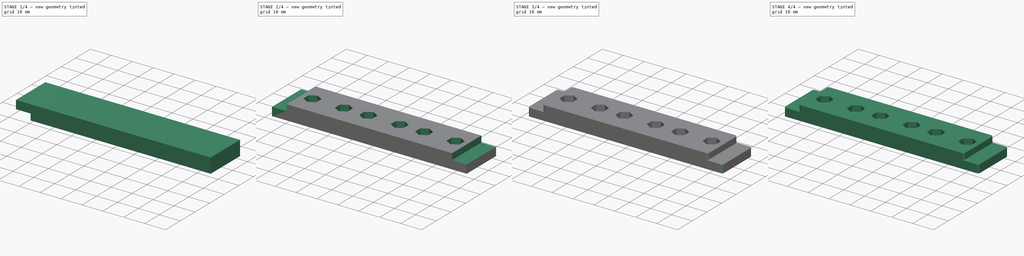
[diagram: build sequence overview — one tinted view per stage of 4, left to right]
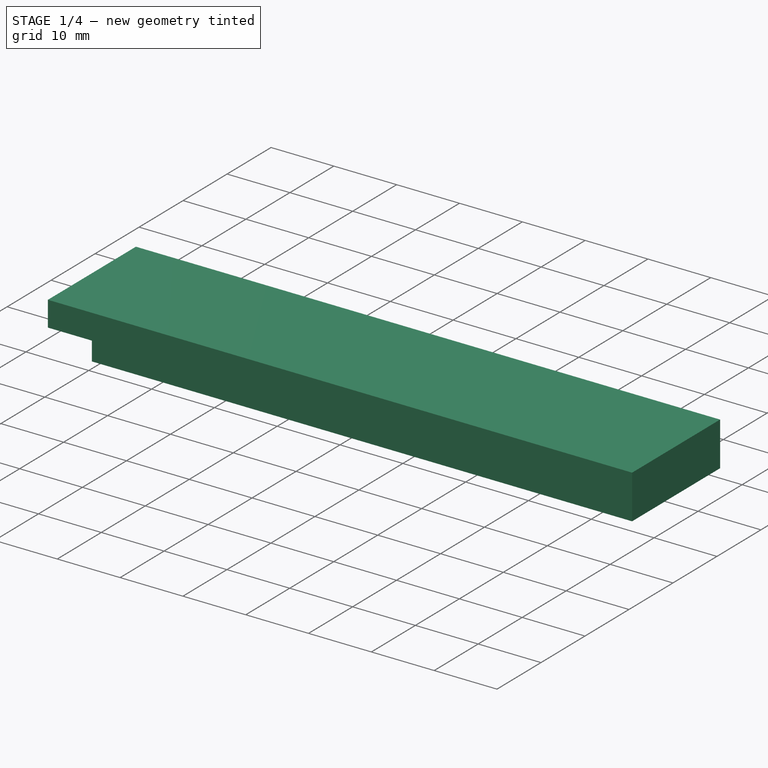
[diagram: stage 1 of 4 — iso view after this stage's code; geometry added in this stage tinted green]
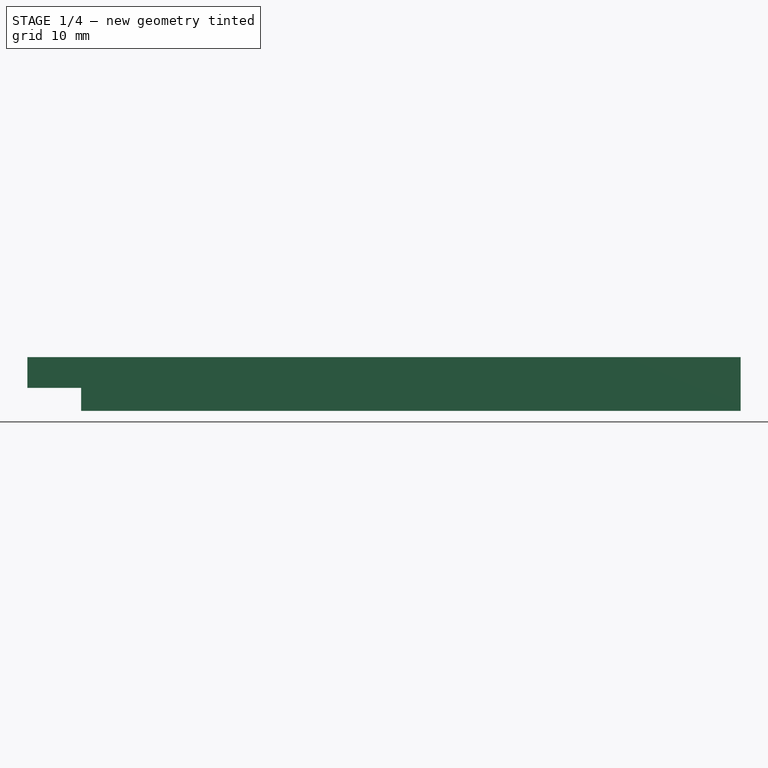
[diagram: stage 1 of 4 — front view after this stage's code; geometry added in this stage tinted green]
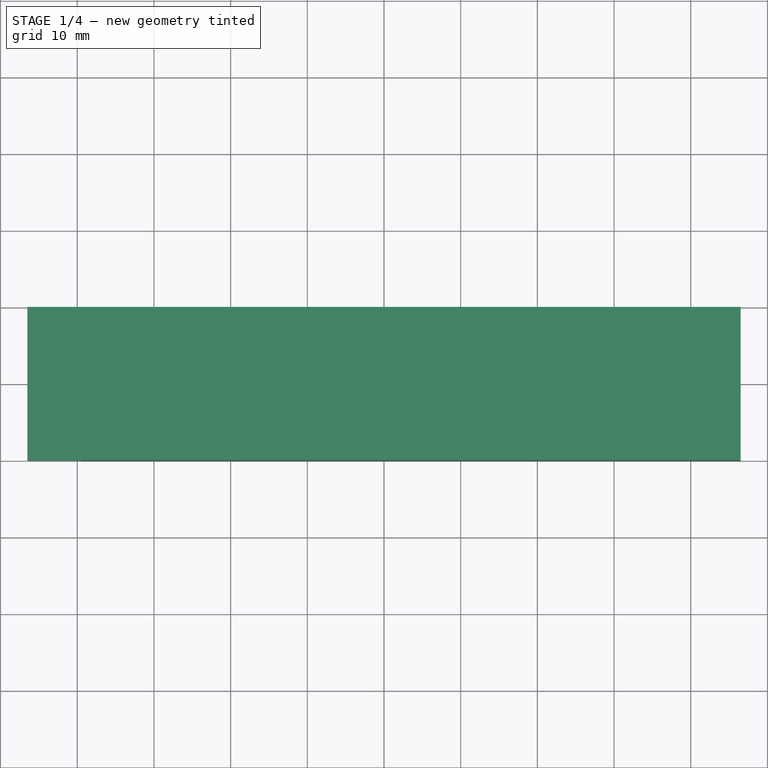
[diagram: stage 1 of 4 — top view after this stage's code; geometry added in this stage tinted green]
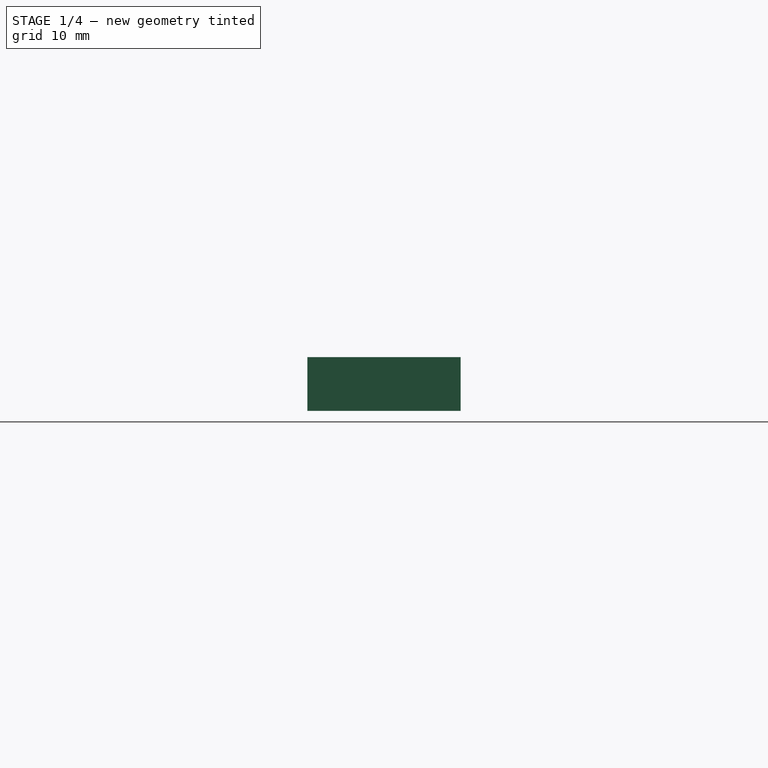
[diagram: stage 1 of 4 — right view after this stage's code; geometry added in this stage tinted green]
FCSTD DOCUMENT  (FreeCAD 0.15R4671 (Git))
Label: strain-relief-bottom
License: All rights reserved
LicenseURL: http://en.wikipedia.org/wiki/All_rights_reserved
objects: Part::Box×3, PartDesign::Chamfer×3, Part::Cut×2, Sketcher::SketchObject×2, PartDesign::Pocket×2, PartDesign::Fillet×2, Part::Chamfer×1
note: 17 computed .brp shape members not serialized (recipe doc carries the construction recipe); baked Part::Feature solids carry a one-line shape summary decoded from their .brp

FEATURE [Part::Box] Box  label="Würfel"
  Height = 7
  Length = 93
  Placement = pos=(-46.5,-10,0) rot=(0,0,1;0rad)
  Width = 20
FEATURE [Part::Box] Box001  label="Würfel001"
  Height = 10
  Length = 10
  Placement = pos=(-49.5,-15,-7) rot=(0,0,1;0rad)
  Width = 30
FEATURE [Part::Cut] Cut
  Base = -> Box
  Tool = -> Box001
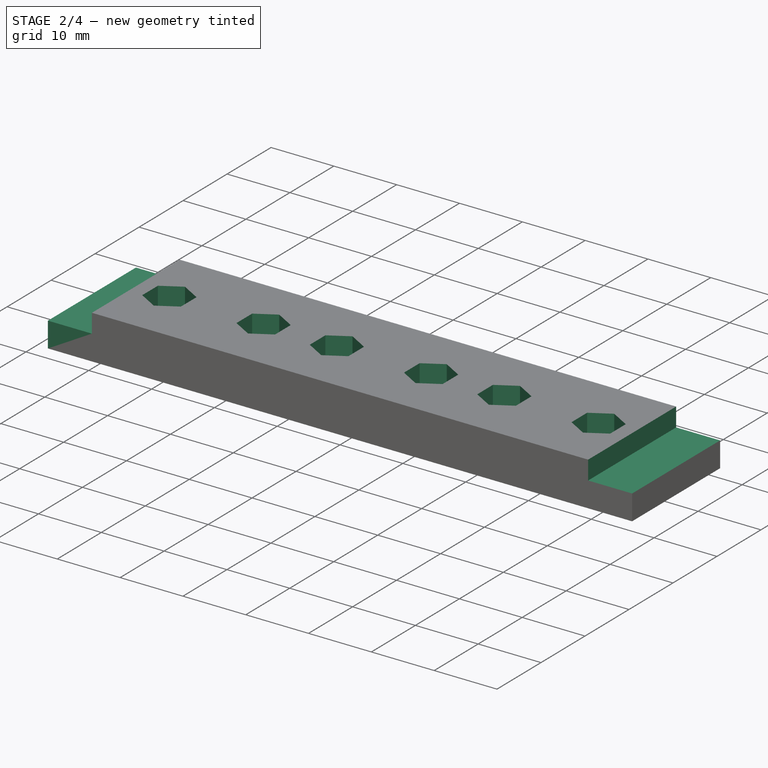
[diagram: stage 2 of 4 — iso view after this stage's code; geometry added in this stage tinted green]
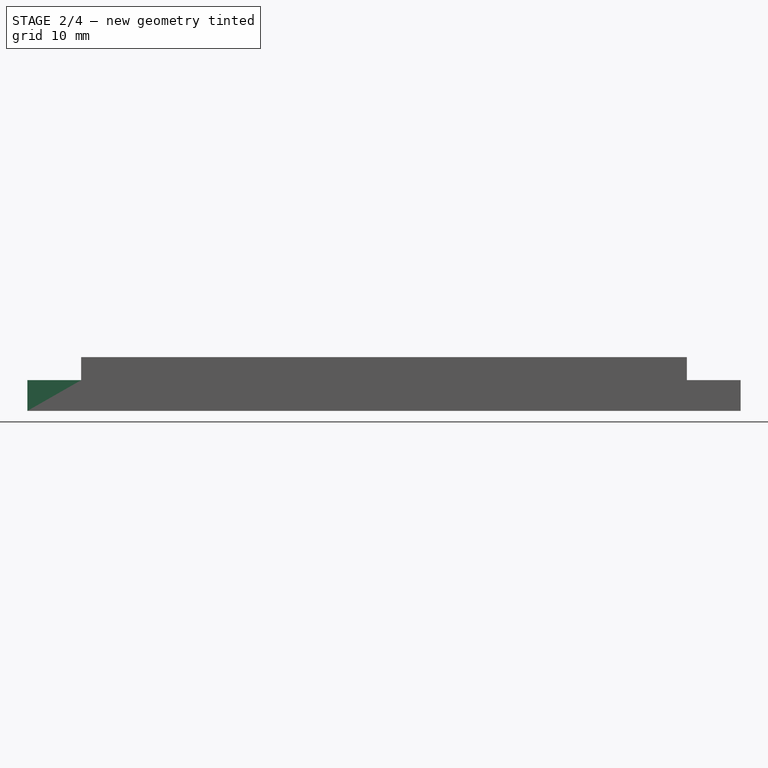
[diagram: stage 2 of 4 — front view after this stage's code; geometry added in this stage tinted green]
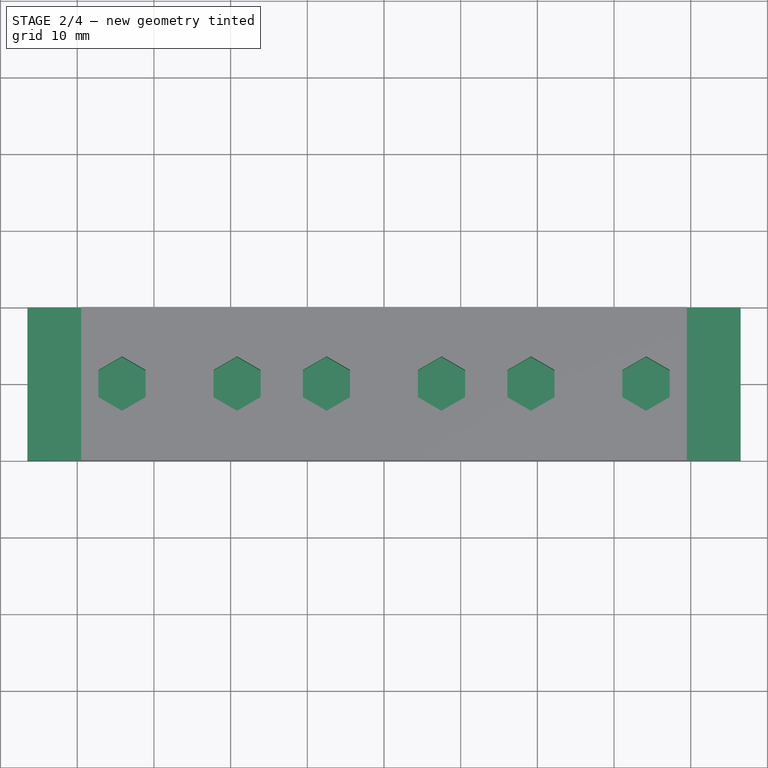
[diagram: stage 2 of 4 — top view after this stage's code; geometry added in this stage tinted green]
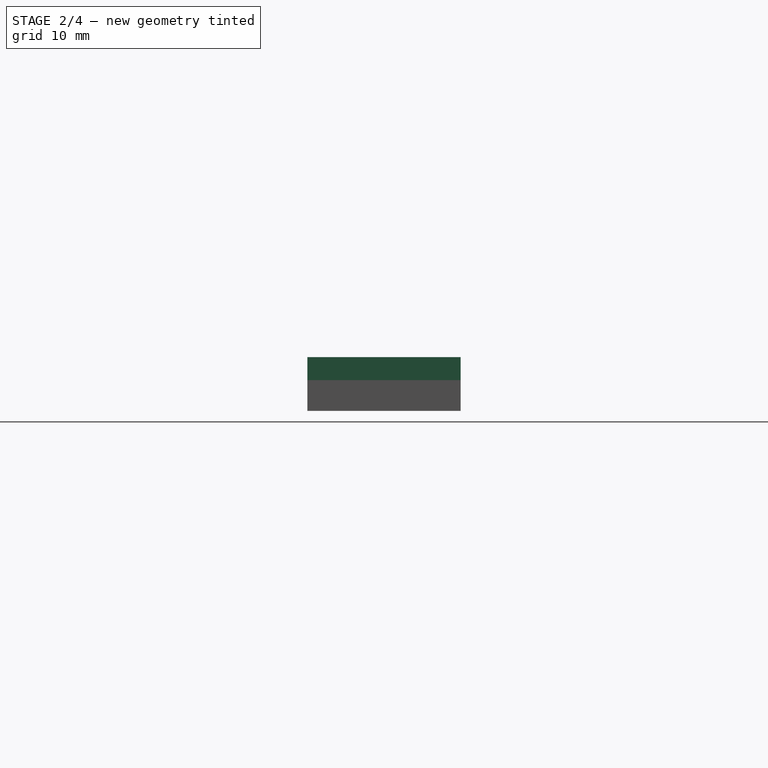
[diagram: stage 2 of 4 — right view after this stage's code; geometry added in this stage tinted green]
FEATURE [Part::Box] Box002  label="Würfel002"
  Height = 10
  Length = 10
  Placement = pos=(39.5,-15,-7) rot=(0,0,1;0rad)
  Width = 30
FEATURE [Part::Cut] Cut001
  Base = -> Cut
  Placement = pos=(0,0,7) rot=(1,0,0;3.14159rad)
  Tool = -> Box002
FEATURE [Sketcher::SketchObject] Sketch
  Placement = pos=(0,0,7) rot=(0,0,1;0rad)
  Support = -> Cut001 [Face6]
  sketch-geometry (47):
    g0: LineSegment StartX=10.5744 StartY=1.775 StartZ=0 EndX=7.5 EndY=3.55 EndZ=0
    g1: LineSegment StartX=7.5 StartY=3.55 StartZ=0 EndX=4.42561 EndY=1.775 EndZ=0
    g2: LineSegment StartX=4.42561 StartY=1.775 StartZ=0 EndX=4.42561 EndY=-1.775 EndZ=0
    g3: LineSegment StartX=4.42561 StartY=-1.775 StartZ=0 EndX=7.5 EndY=-3.55 EndZ=0
    g4: LineSegment StartX=7.5 StartY=-3.55 StartZ=0 EndX=10.5744 EndY=-1.775 EndZ=0
    g5: LineSegment StartX=10.5744 StartY=-1.775 StartZ=0 EndX=10.5744 EndY=1.775 EndZ=0
    g6: Circle [constr] CenterX=7.5 CenterY=0 CenterZ=0 NormalX=0 NormalY=0 NormalZ=1 Radius=3.55
    g7: LineSegment StartX=-4.42561 StartY=1.775 StartZ=0 EndX=-7.5 EndY=3.55 EndZ=0
    g8: LineSegment StartX=-7.5 StartY=3.55 StartZ=0 EndX=-10.5744 EndY=1.775 EndZ=0
    g9: LineSegment StartX=-10.5744 StartY=1.775 StartZ=0 EndX=-10.5744 EndY=-1.775 EndZ=0
    g10: LineSegment StartX=-10.5744 StartY=-1.775 StartZ=0 EndX=-7.5 EndY=-3.55 EndZ=0
    g11: LineSegment StartX=-7.5 StartY=-3.55 StartZ=0 EndX=-4.42561 EndY=-1.775 EndZ=0
    g12: LineSegment StartX=-4.42561 StartY=-1.775 StartZ=0 EndX=-4.42561 EndY=1.775 EndZ=0
    g13: Circle [constr] CenterX=-7.5 CenterY=0 CenterZ=0 NormalX=0 NormalY=0 NormalZ=1 Radius=3.55
    g14: LineSegment StartX=-16.0923 StartY=1.775 StartZ=0 EndX=-19.1667 EndY=3.55 EndZ=0
    g15: LineSegment StartX=-19.1667 StartY=3.55 StartZ=0 EndX=-22.2411 EndY=1.775 EndZ=0
    g16: LineSegment StartX=-22.2411 StartY=1.775 StartZ=0 EndX=-22.2411 EndY=-1.775 EndZ=0
    g17: LineSegment StartX=-22.2411 StartY=-1.775 StartZ=0 EndX=-19.1667 EndY=-3.55 EndZ=0
    g18: LineSegment StartX=-19.1667 StartY=-3.55 StartZ=0 EndX=-16.0923 EndY=-1.775 EndZ=0
    g19: LineSegment StartX=-16.0923 StartY=-1.775 StartZ=0 EndX=-16.0923 EndY=1.775 EndZ=0
    g20: Circle [constr] CenterX=-19.1667 CenterY=0 CenterZ=0 NormalX=0 NormalY=0 NormalZ=1 Radius=3.55
    g21: LineSegment StartX=-31.0923 StartY=1.775 StartZ=0 EndX=-34.1667 EndY=3.55 EndZ=0
    g22: LineSegment StartX=-34.1667 StartY=3.55 StartZ=0 EndX=-37.2411 EndY=1.775 EndZ=0
    g23: LineSegment StartX=-37.2411 StartY=1.775 StartZ=0 EndX=-37.2411 EndY=-1.775 EndZ=0
    g24: LineSegment StartX=-37.2411 StartY=-1.775 StartZ=0 EndX=-34.1667 EndY=-3.55 EndZ=0
    g25: LineSegment StartX=-34.1667 StartY=-3.55 StartZ=0 EndX=-31.0923 EndY=-1.775 EndZ=0
    g26: LineSegment StartX=-31.0923 StartY=-1.775 StartZ=0 EndX=-31.0923 EndY=1.775 EndZ=0
    g27: Circle [constr] CenterX=-34.1667 CenterY=0 CenterZ=0 NormalX=0 NormalY=0 NormalZ=1 Radius=3.55
    g28: LineSegment StartX=22.2411 StartY=-1.775 StartZ=0 EndX=22.2411 EndY=1.775 EndZ=0
    g29: LineSegment StartX=22.2411 StartY=1.775 StartZ=0 EndX=19.1667 EndY=3.55 EndZ=0
    g30: LineSegment StartX=19.1667 StartY=3.55 StartZ=0 EndX=16.0923 EndY=1.775 EndZ=0
    g31: LineSegment StartX=16.0923 StartY=1.775 StartZ=0 EndX=16.0923 EndY=-1.775 EndZ=0
    g32: LineSegment StartX=16.0923 StartY=-1.775 StartZ=0 EndX=19.1667 EndY=-3.55 EndZ=0
    g33: LineSegment StartX=19.1667 StartY=-3.55 StartZ=0 EndX=22.2411 EndY=-1.775 EndZ=0
    g34: Circle [constr] CenterX=19.1667 CenterY=0 CenterZ=0 NormalX=0 NormalY=0 NormalZ=1 Radius=3.55
    g35: LineSegment StartX=37.2411 StartY=-1.775 StartZ=0 EndX=37.2411 EndY=1.775 EndZ=0
    g36: LineSegment StartX=37.2411 StartY=1.775 StartZ=0 EndX=34.1667 EndY=3.55 EndZ=0
    g37: LineSegment StartX=34.1667 StartY=3.55 StartZ=0 EndX=31.0923 EndY=1.775 EndZ=0
    g38: LineSegment StartX=31.0923 StartY=1.775 StartZ=0 EndX=31.0923 EndY=-1.775 EndZ=0
    g39: LineSegment StartX=31.0923 StartY=-1.775 StartZ=0 EndX=34.1667 EndY=-3.55 EndZ=0
    g40: LineSegment StartX=34.1667 StartY=-3.55 StartZ=0 EndX=37.2411 EndY=-1.775 EndZ=0
    g41: Circle [constr] CenterX=34.1667 CenterY=0 CenterZ=0 NormalX=0 NormalY=0 NormalZ=1 Radius=3.55
    g42: LineSegment [constr] StartX=-26.6667 StartY=10 StartZ=0 EndX=-26.6667 EndY=-10 EndZ=0
    g43: LineSegment [constr] StartX=26.6667 StartY=-10 StartZ=0 EndX=26.6667 EndY=10 EndZ=0
    g44: LineSegment [constr] StartX=19.1667 StartY=0 StartZ=0 EndX=34.1667 EndY=0 EndZ=0
    g45: LineSegment [constr] StartX=7.5 StartY=0 StartZ=0 EndX=-7.5 EndY=0 EndZ=0
    g46: LineSegment [constr] StartX=-19.1667 StartY=0 StartZ=0 EndX=-34.1667 EndY=0 EndZ=0
  constraints (113):
    c: Coincident(g0,g1)
    c: Coincident(g1,g2)
    c: Coincident(g2,g3)
    c: Coincident(g3,g4)
    c: Coincident(g4,g5)
    c: Coincident(g5,g0)
    c: Equal(g0, g1-g5) x5
    c: PointOnObject(g0,g6)
    c: PointOnObject(g1,g6)
    c: PointOnObject(g2,g6)
    c: PointOnObject(g3,g6)
    c: PointOnObject(g4,g6)
    c: Coincident(g7,g8)
    c: Coincident(g8,g9)
    c: Coincident(g9,g10)
    c: Coincident(g10,g11)
    c: Coincident(g11,g12)
    c: Coincident(g12,g7)
    c: Equal(g7, g8-g12) x5
    c: PointOnObject(g7,g13)
    c: PointOnObject(g8,g13)
    c: PointOnObject(g9,g13)
    c: PointOnObject(g10,g13)
    c: PointOnObject(g11,g13)
    c: Radius(g13) = 3.55
    c: Coincident(g14,g15)
    c: Coincident(g15,g16)
    c: Coincident(g16,g17)
    c: Coincident(g17,g18)
    c: Coincident(g18,g19)
    c: Coincident(g19,g14)
    c: Equal(g14, g15-g19) x5
    c: PointOnObject(g14,g20)
    c: PointOnObject(g15,g20)
    c: PointOnObject(g16,g20)
    c: PointOnObject(g17,g20)
    c: PointOnObject(g18,g20)
    c: Coincident(g21,g22)
    c: Coincident(g22,g23)
    c: Coincident(g23,g24)
    c: Coincident(g24,g25)
    c: Coincident(g25,g26)
    c: Coincident(g26,g21)
    c: Equal(g21, g22-g26) x5
    c: PointOnObject(g21,g27)
    c: PointOnObject(g22,g27)
    c: PointOnObject(g23,g27)
    c: PointOnObject(g24,g27)
    c: PointOnObject(g25,g27)
    c: Coincident(g28,g29)
    c: Coincident(g29,g30)
    c: Coincident(g30,g31)
    c: Coincident(g31,g32)
    c: Coincident(g32,g33)
    c: Coincident(g33,g28)
    c: Equal(g28, g29-g33) x5
    c: PointOnObject(g28,g34)
    c: PointOnObject(g29,g34)
    c: PointOnObject(g30,g34)
    c: PointOnObject(g31,g34)
    c: PointOnObject(g32,g34)
    c: Coincident(g35,g36)
    c: Coincident(g36,g37)
    c: Coincident(g37,g38)
    c: Coincident(g38,g39)
    c: Coincident(g39,g40)
    c: Coincident(g40,g35)
    c: Equal(g35, g36-g40) x5
    c: PointOnObject(g35,g41)
    c: PointOnObject(g36,g41)
    c: PointOnObject(g37,g41)
    c: PointOnObject(g38,g41)
    c: PointOnObject(g39,g41)
    c: Symmetric(g42,g42,g-1)
    c: DistanceX(g-1,g42) = -26.6667
    c: Symmetric(g43,g43,g-1)
    c: Symmetric(g43,g42,g-1)
    c: DistanceY(g43) = 20
    c: PointOnObject(g14,g20)
    c: PointOnObject(g21,g27)
    c: PointOnObject(g7,g13)
    c: PointOnObject(g0,g6)
    c: PointOnObject(g28,g34)
    c: PointOnObject(g35,g41)
    c: PointOnObject(g41,g-1)
    c: Perpendicular(g-1,g38)
    c: PointOnObject(g34,g-1)
    c: PointOnObject(g6,g-1)
    c: Coincident(g41,g44)
    c: Coincident(g44,g34)
    c: Perpendicular(g-1,g31)
    c: PointOnObject(g13,g-1)
    c: Perpendicular(g-1,g9)
    c: Coincident(g45,g6)
    c: Coincident(g45,g13)
    c: Perpendicular(g2,g-1)
    c: PointOnObject(g20,g-1)
    c: PointOnObject(g27,g-1)
    c: Perpendicular(g-1,g23)
    c: Perpendicular(g-1,g16)
    c: Coincident(g46,g20)
    c: Coincident(g46,g27)
    c: Equal(g46,g45)
    c: Equal(g45,g44)
    c: DistanceX(g46) = -15
    c: Equal(g27,g20)
    c: Equal(g20,g13)
    c: Equal(g13,g6)
    c: Equal(g6,g34)
    c: Equal(g34,g41)
    c: Symmetric(g13,g6,g-2)
    c: Symmetric(g41,g34,g43)
    c: Symmetric(g20,g27,g42)
FEATURE [PartDesign::Pocket] Pocket
  Length = 5.5
  Placement = pos=(0,0,7) rot=(1,0,0;3.14159rad)
  Sketch = -> Sketch
  Type = 0
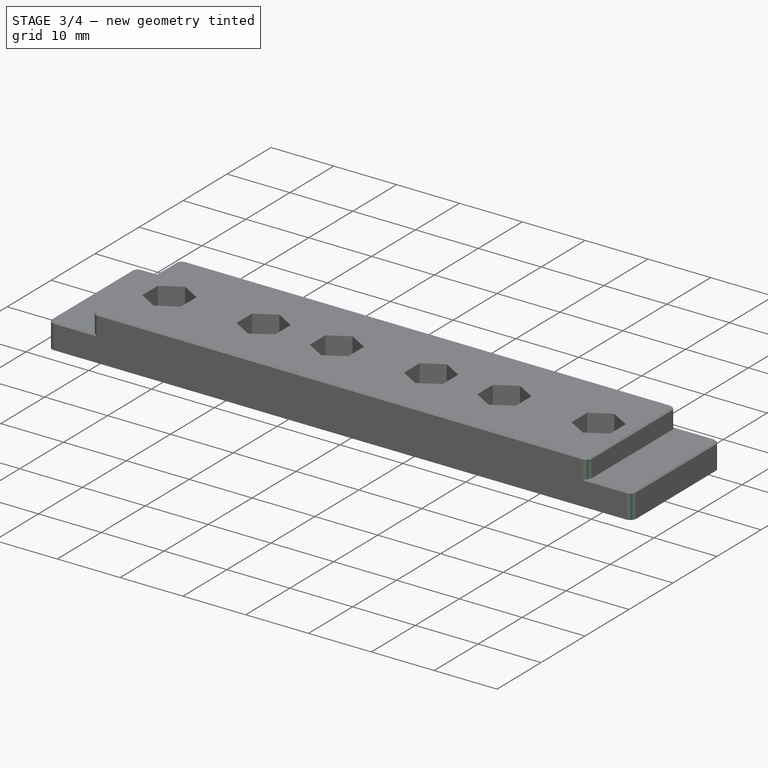
[diagram: stage 3 of 4 — iso view after this stage's code; geometry added in this stage tinted green]
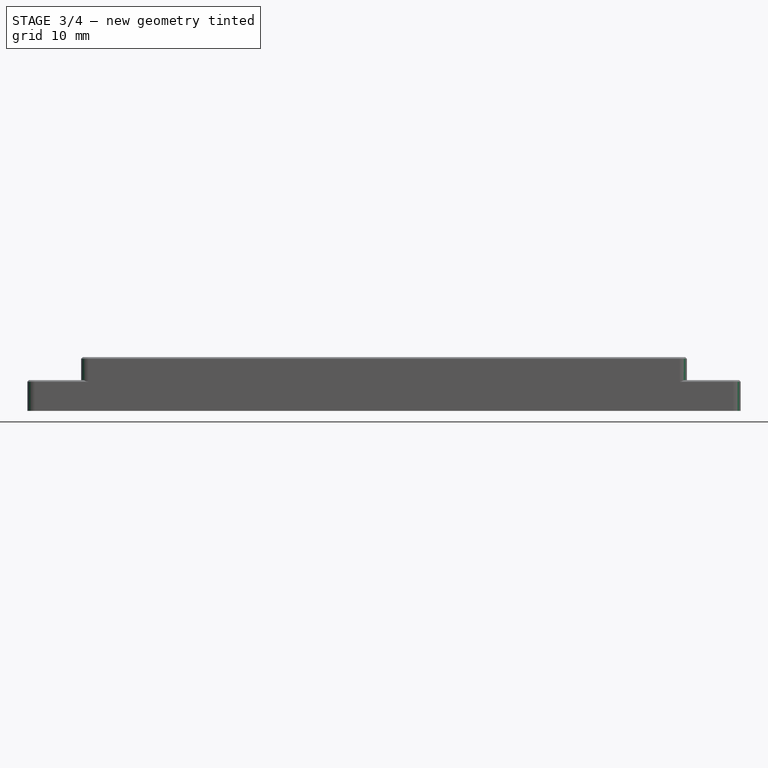
[diagram: stage 3 of 4 — front view after this stage's code; geometry added in this stage tinted green]
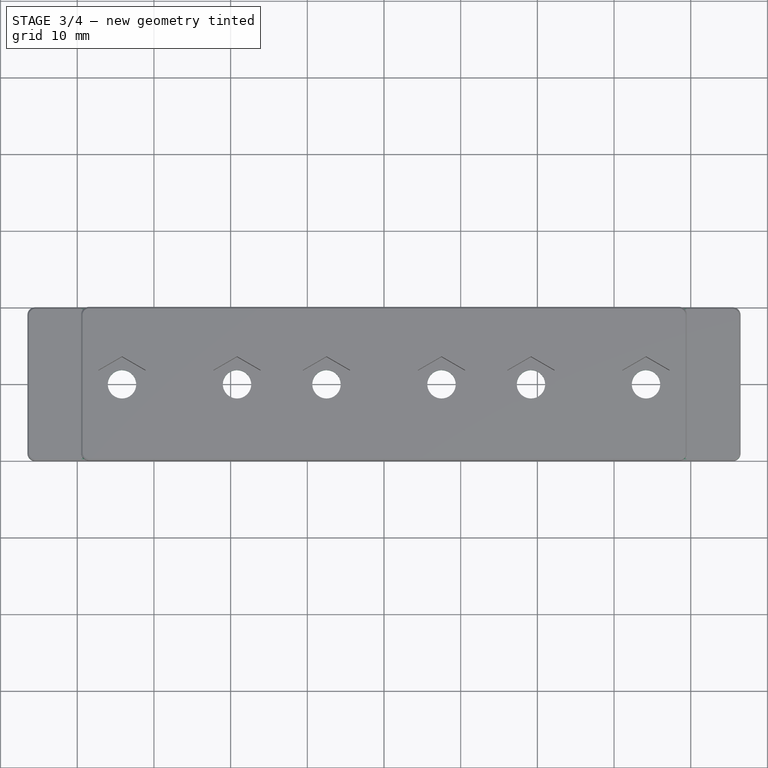
[diagram: stage 3 of 4 — top view after this stage's code; geometry added in this stage tinted green]
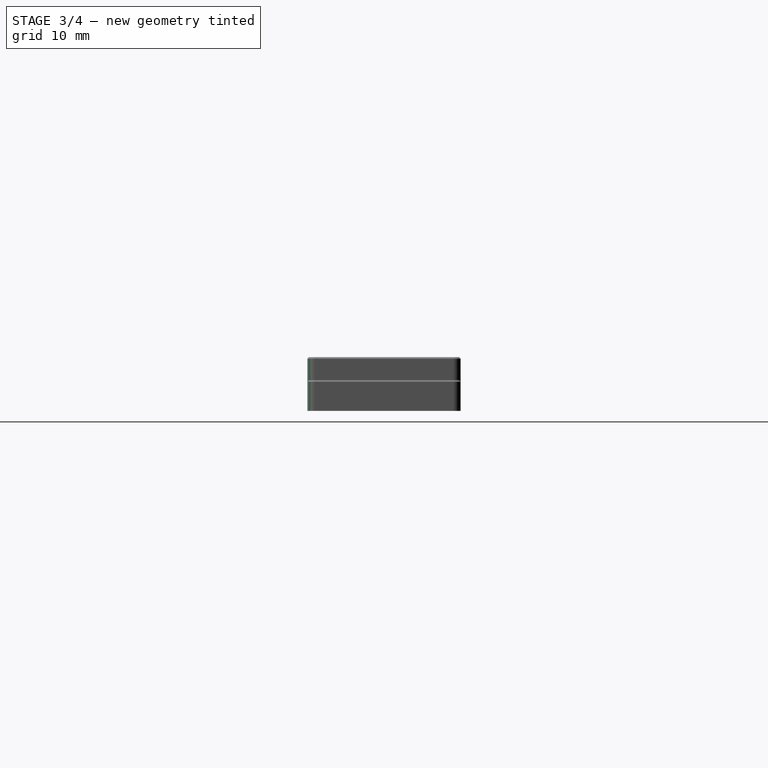
[diagram: stage 3 of 4 — right view after this stage's code; geometry added in this stage tinted green]
FEATURE [Sketcher::SketchObject] Sketch001
  Placement = pos=(0,0,7) rot=(0,0,1;0rad)
  Support = -> Pocket [Face6]
  sketch-geometry (11):
    g0: LineSegment [constr] StartX=-26.6667 StartY=10 StartZ=0 EndX=-26.6667 EndY=-10 EndZ=0
    g1: LineSegment [constr] StartX=26.6667 StartY=10 StartZ=0 EndX=26.6667 EndY=-10 EndZ=0
    g2: Circle CenterX=-19.1667 CenterY=0 CenterZ=0 NormalX=0 NormalY=0 NormalZ=1 Radius=1.85
    g3: Circle CenterX=-7.5 CenterY=0 CenterZ=0 NormalX=0 NormalY=0 NormalZ=1 Radius=1.85
    g4: Circle CenterX=7.5 CenterY=0 CenterZ=0 NormalX=0 NormalY=0 NormalZ=1 Radius=1.85
    g5: Circle CenterX=19.1667 CenterY=0 CenterZ=0 NormalX=0 NormalY=0 NormalZ=1 Radius=1.85
    g6: Circle CenterX=34.1667 CenterY=0 CenterZ=0 NormalX=0 NormalY=0 NormalZ=1 Radius=1.85
    g7: Circle CenterX=-34.1667 CenterY=0 CenterZ=0 NormalX=0 NormalY=0 NormalZ=1 Radius=1.85
    g8: LineSegment [constr] StartX=-34.1667 StartY=0 StartZ=0 EndX=-19.1667 EndY=0 EndZ=0
    g9: LineSegment [constr] StartX=-7.5 StartY=0 StartZ=0 EndX=7.5 EndY=0 EndZ=0
    g10: LineSegment [constr] StartX=19.1667 StartY=0 StartZ=0 EndX=34.1667 EndY=0 EndZ=0
  constraints (29):
    c: Symmetric(g0,g0,g-1)
    c: Symmetric(g1,g1,g-1)
    c: Symmetric(g1,g0,g-1)
    c: DistanceY(g0,g0) = -20
    c: DistanceX(g-1,g0) = -26.6667
    c: PointOnObject(g2,g-1)
    c: PointOnObject(g7,g-1)
    c: PointOnObject(g3,g-1)
    c: PointOnObject(g4,g-1)
    c: PointOnObject(g5,g-1)
    c: PointOnObject(g6,g-1)
    c: Radius(g7) = 1.85
    c: Symmetric(g2,g7,g0)
    c: Symmetric(g3,g4,g-2)
    c: Symmetric(g6,g5,g1)
    c: DistanceX(g2,g7) = -15
    c: Equal(g7,g2)
    c: Equal(g2,g3)
    c: Equal(g3,g4)
    c: Equal(g4,g5)
    c: Equal(g5,g6)
    c: Coincident(g8,g2)
    c: Coincident(g8,g7)
    c: Coincident(g9,g4)
    c: Coincident(g10,g5)
    c: Coincident(g10,g6)
    c: Equal(g10,g9)
    c: Equal(g9,g8)
    c: Coincident(g3,g9)
FEATURE [PartDesign::Pocket] Pocket001
  Length = 30
  Placement = pos=(0,0,7) rot=(1,0,0;3.14159rad)
  Sketch = -> Sketch001
  Type = 0
FEATURE [PartDesign::Fillet] Fillet
  Base = -> Pocket001 [Edge8,Edge23,Edge1,Edge3]
  Placement = pos=(0,0,7) rot=(1,0,0;3.14159rad)
  Radius = 1
FEATURE [PartDesign::Fillet] Fillet001
  Base = -> Fillet [Edge32,Edge27,Edge34,Edge29]
  Placement = pos=(0,0,7) rot=(1,0,0;3.14159rad)
  Radius = 1
FEATURE [PartDesign::Chamfer] Chamfer001  label="Chamfer"
  Base = -> Fillet001 [Edge10,Edge8,Edge6,Edge7,Edge9,Edge5,Edge25,Edge17,Edge13,Edge4,Edge15,Edge18,Edge37,Edge27,Edge28,Edge81,Edge82,Edge80,Edge21,Edge20,Edge39,Edge38]
  Placement = pos=(0,0,7) rot=(1,0,0;3.14159rad)
  Size = 0.2
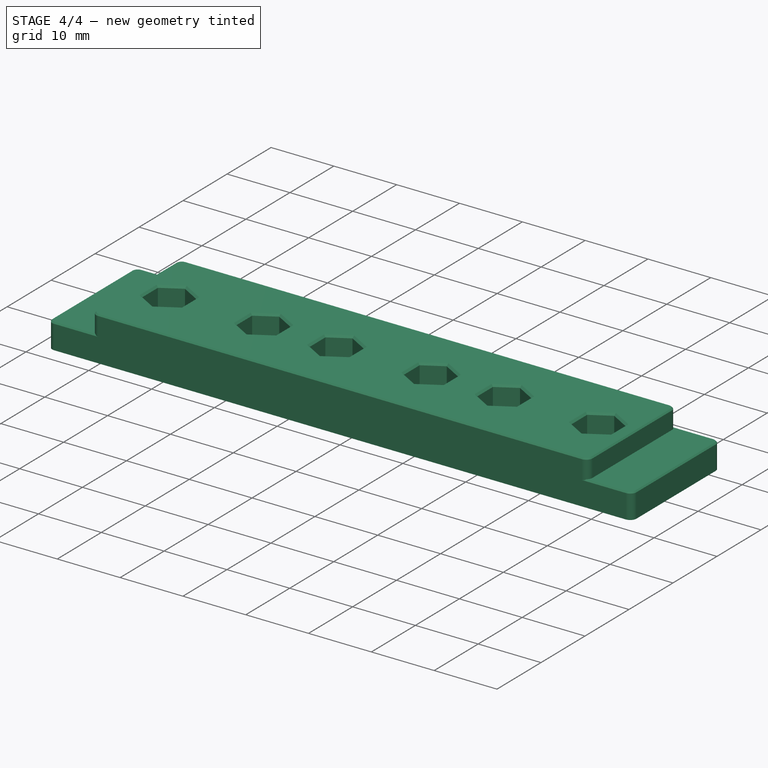
[diagram: stage 4 of 4 — iso view after this stage's code; geometry added in this stage tinted green]
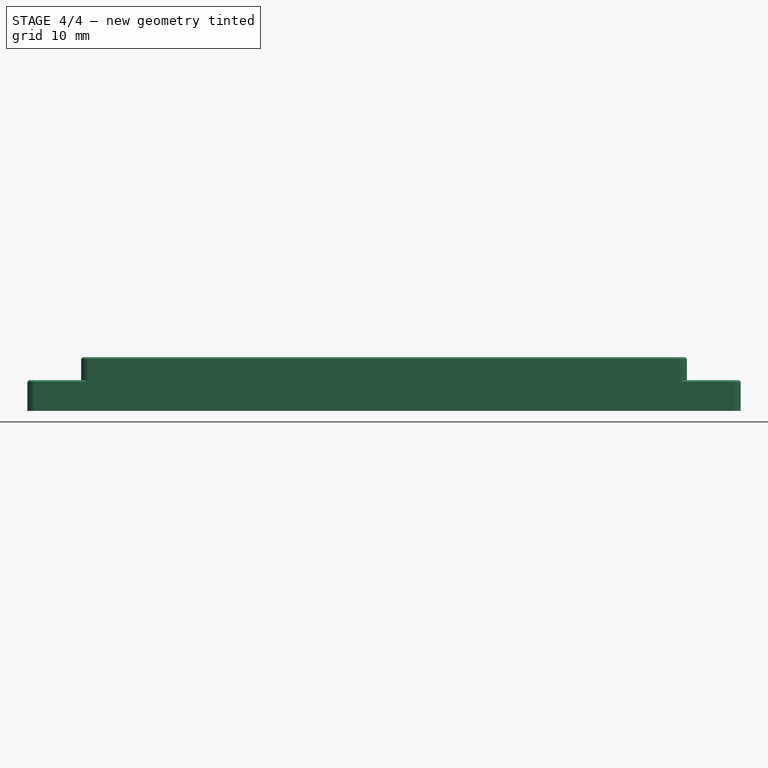
[diagram: stage 4 of 4 — front view after this stage's code; geometry added in this stage tinted green]
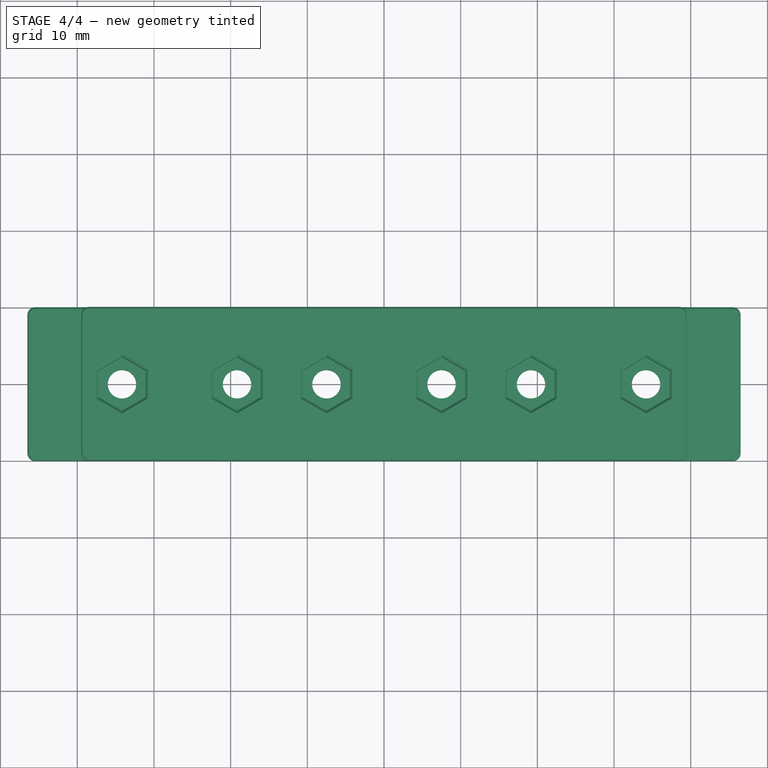
[diagram: stage 4 of 4 — top view after this stage's code; geometry added in this stage tinted green]
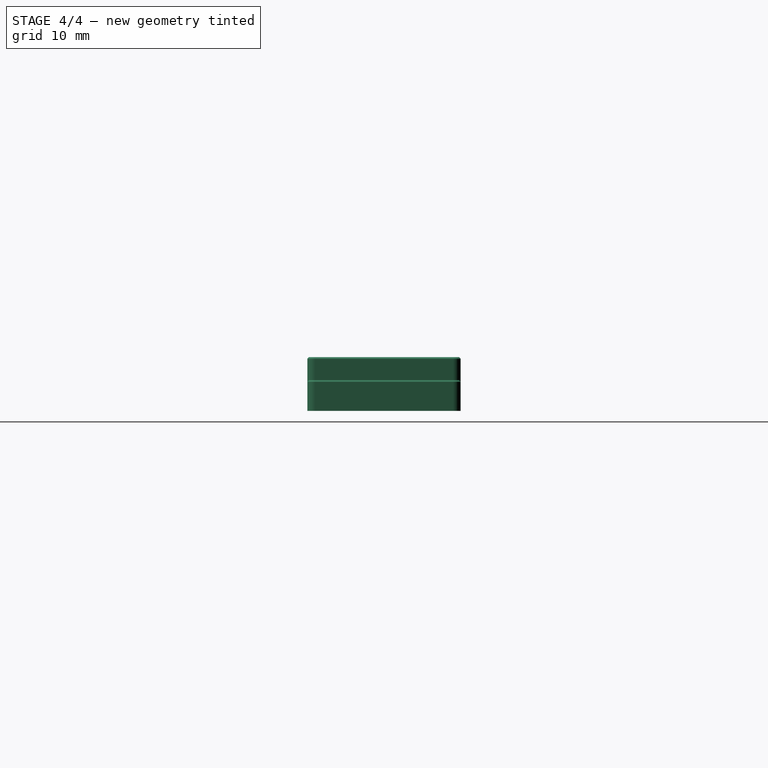
[diagram: stage 4 of 4 — right view after this stage's code; geometry added in this stage tinted green]
FEATURE [PartDesign::Chamfer] Chamfer002  label="Chamfer001"
  Base = -> Chamfer001 [Edge120,Edge121,Edge122,Edge119,Edge118,Edge123,Edge117,Edge112,Edge113,Edge114,Edge115,Edge116,Edge91,Edge92,Edge93,Edge88,Edge89,Edge90,Edge94,Edge95,Edge96,Edge97,Edge98,Edge99,Edge110,Edge109,Edge108,Edge107,Edge106,Edge111,Edge101,Edge102,Edge103,Edge104,Edge105,Edge100]
  Placement = pos=(0,0,7) rot=(1,0,0;3.14159rad)
  Size = 0.3
FEATURE [PartDesign::Chamfer] Chamfer  label="Chamfer004"
  Base = -> Chamfer002 [Edge285,Edge284,Edge241,Edge286,Edge287,Edge288]
  Placement = pos=(0,0,7) rot=(1,0,0;3.14159rad)
  Size = 0.1
FEATURE [Part::Chamfer] Chamfer003
  Base = -> Chamfer002
  Edges = 14 edges r=0.2: [Edge154,Edge179,Edge250,Edge253,Edge254,Edge255,Edge256,Edge257,Edge258,Edge259,Edge260,Edge261,Edge262,Edge263]
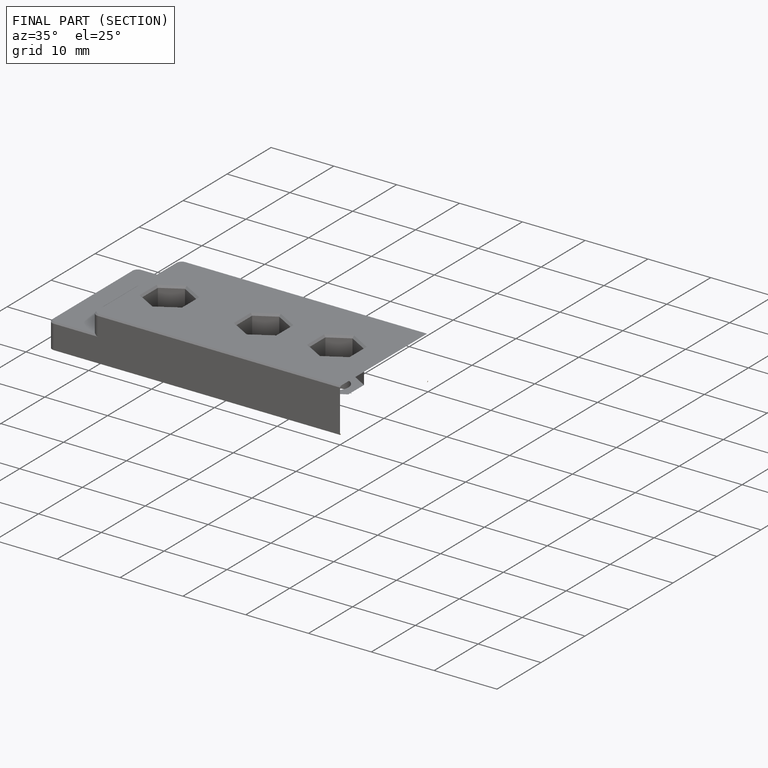
[diagram: finished part — half-section view (interior)]
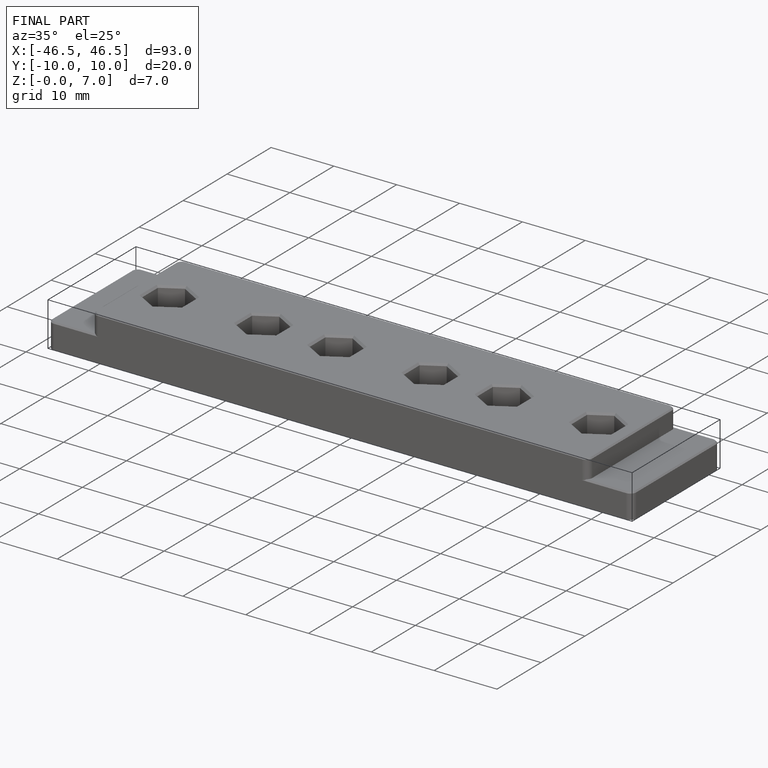
[diagram: finished part — iso view with bounding-box wireframe]
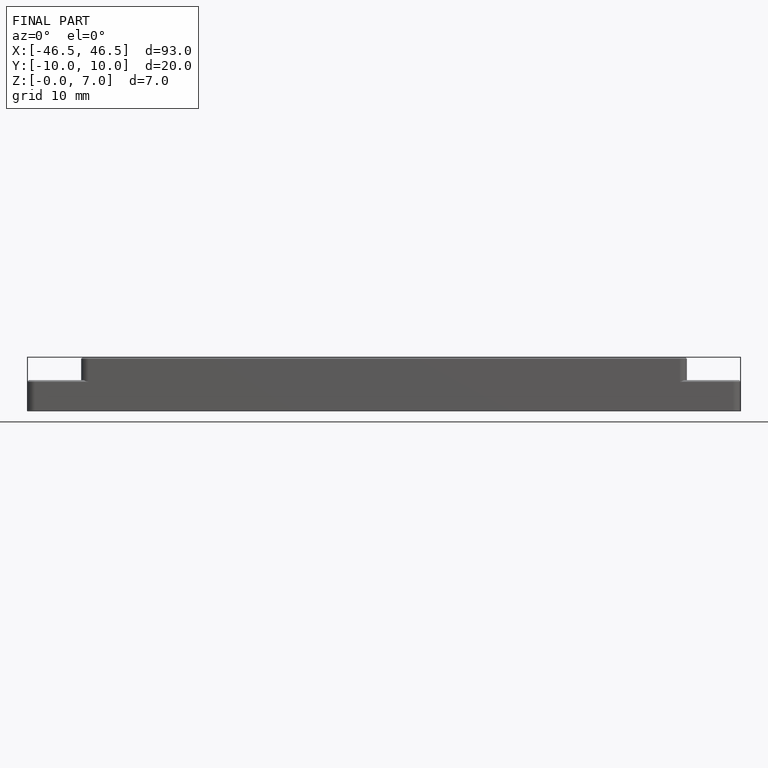
[diagram: finished part — front view with bounding-box wireframe]
